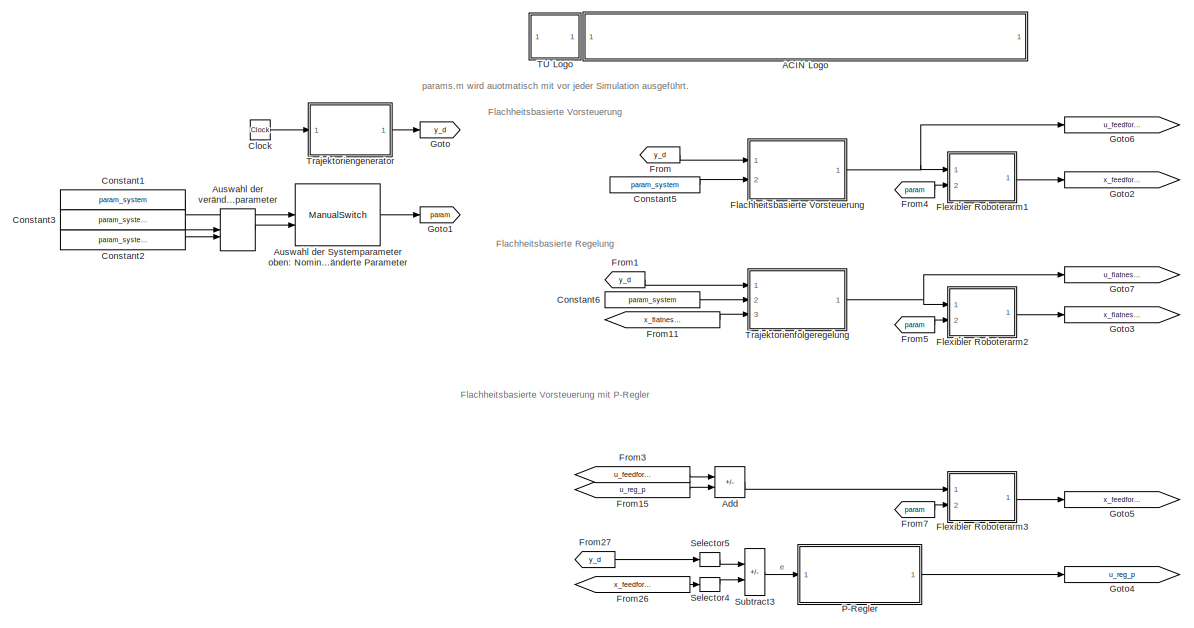
[diagram: root canvas - part 1/2, left side, full height]
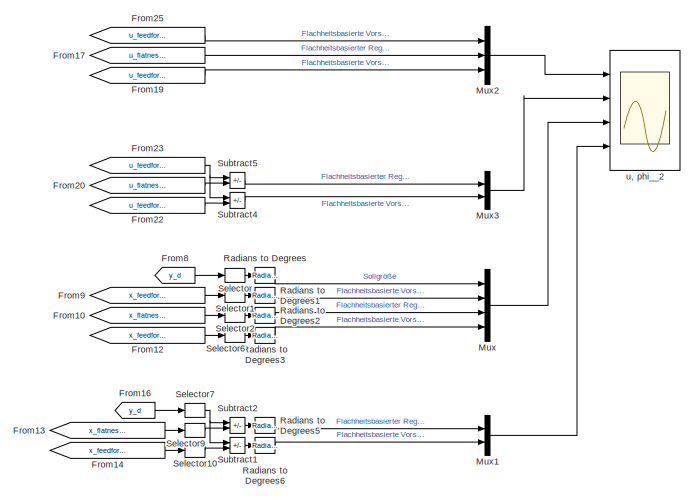
[diagram: root canvas - part 2/2, right side, full height]
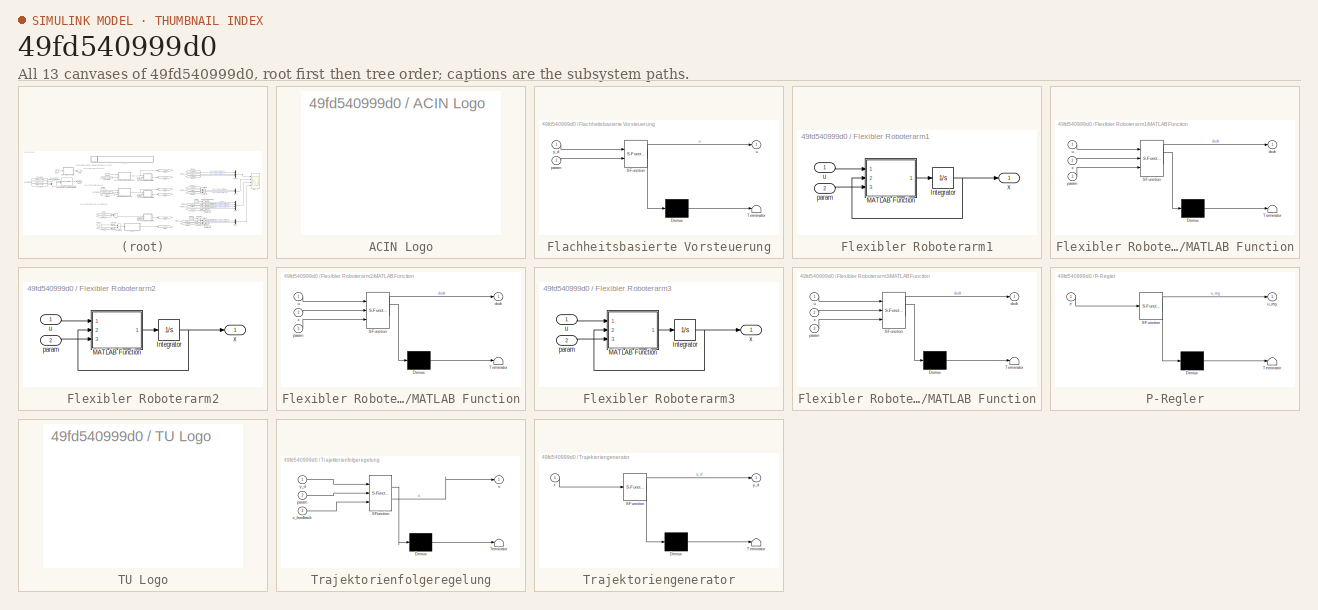
[diagram: thumbnail index - all 13 canvases of the model, root first then tree order]
MODEL slx_49fd540999d0
KIND model
CONFIG AbsTol = auto
CONFIG EnableMultiTasking = off
CONFIG FixedStep = auto
CONFIG InitFcn = params;
CONFIG MaxStep = auto
CONFIG MinStep = auto
CONFIG RelTol = 1e-3
CONFIG SampleTimeConstraint = Unconstrained
CONFIG SolverName = ode45
CONFIG StartTime = 0.0
CONFIG StopTime = 101
BLOCK [SubSystem] ACIN Logo
  Ports = []
  RequestExecContextInheritance = off
  UserDataPersistent = on
BLOCK [Sum] Add
  IconShape = rectangular
  Inputs = +-
  Ports = [2, 1]
BLOCK [ManualSwitch] Auswahl der Systemparameter oben: Nominelle Parameter unten: Veränderte Parameter
BLOCK [ManualSwitch] Auswahl der veränderten Systemparameter
BLOCK [Clock] Clock
BLOCK [Constant] Constant1
  Value = param_system
BLOCK [Constant] Constant2
  Value = param_system_altered2
BLOCK [Constant] Constant3
  Value = param_system_altered1
BLOCK [Constant] Constant5
  Value = param_system
BLOCK [Constant] Constant6
  Value = param_system
BLOCK [SubSystem] Flachheitsbasierte Vorsteuerung
  ErrorFcn = Stateflow.Translate.translate
  PermitHierarchicalResolution = ExplicitOnly
  Ports = [2, 1]
  RequestExecContextInheritance = off
  SFBlockType = MATLAB Function
  TreatAsAtomicUnit = on
BLOCK [Demux] Flachheitsbasierte Vorsteuerung/ Demux 
  Outputs = 1
  Ports = [1, 1]
BLOCK [S-Function] Flachheitsbasierte Vorsteuerung/ SFunction 
  EnableBusSupport = on
  FunctionName = sf_sfun
  PortCounts = [2 2]
  Ports = [2, 2]
  SFcnIsStateOwnerBlock = off
  SFunctionDeploymentMode = off
  Tag = Stateflow S-Function 2
BLOCK [Terminator] Flachheitsbasierte Vorsteuerung/ Terminator 
BLOCK [Inport] Flachheitsbasierte Vorsteuerung/param
  Port = 2
BLOCK [Outport] Flachheitsbasierte Vorsteuerung/u
BLOCK [Inport] Flachheitsbasierte Vorsteuerung/y_d
BLOCK [SubSystem] Flexibler Roboterarm1
  Ports = [2, 1]
  RequestExecContextInheritance = off
BLOCK [Integrator] Flexibler Roboterarm1/Integrator
  InitialCondition = x__0
  Ports = [1, 1]
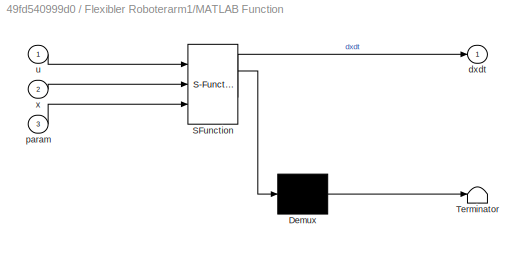
BLOCK [SubSystem] Flexibler Roboterarm1/MATLAB Function
  ErrorFcn = Stateflow.Translate.translate
  PermitHierarchicalResolution = ExplicitOnly
  Ports = [3, 1]
  RequestExecContextInheritance = off
  SFBlockType = MATLAB Function
  TreatAsAtomicUnit = on
BLOCK [Demux] Flexibler Roboterarm1/MATLAB Function/ Demux 
  Outputs = 1
  Ports = [1, 1]
BLOCK [S-Function] Flexibler Roboterarm1/MATLAB Function/ SFunction 
  EnableBusSupport = on
  FunctionName = sf_sfun
  PortCounts = [3 2]
  Ports = [3, 2]
  SFcnIsStateOwnerBlock = off
  SFunctionDeploymentMode = off
  Tag = Stateflow S-Function 10
BLOCK [Terminator] Flexibler Roboterarm1/MATLAB Function/ Terminator 
BLOCK [Outport] Flexibler Roboterarm1/MATLAB Function/dxdt
  VectorParamsAs1DForOutWhenUnconnected = off
BLOCK [Inport] Flexibler Roboterarm1/MATLAB Function/param
  Port = 3
BLOCK [Inport] Flexibler Roboterarm1/MATLAB Function/u
BLOCK [Inport] Flexibler Roboterarm1/MATLAB Function/x
  Port = 2
BLOCK [Inport] Flexibler Roboterarm1/param
  Port = 2
BLOCK [Inport] Flexibler Roboterarm1/u
BLOCK [Outport] Flexibler Roboterarm1/x
  VectorParamsAs1DForOutWhenUnconnected = off
BLOCK [SubSystem] Flexibler Roboterarm2
  Ports = [2, 1]
  RequestExecContextInheritance = off
BLOCK [Integrator] Flexibler Roboterarm2/Integrator
  InitialCondition = x__0
  Ports = [1, 1]
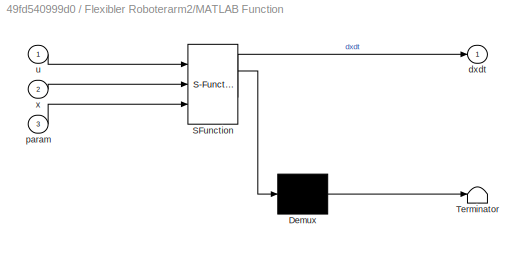
BLOCK [SubSystem] Flexibler Roboterarm2/MATLAB Function
  ErrorFcn = Stateflow.Translate.translate
  PermitHierarchicalResolution = ExplicitOnly
  Ports = [3, 1]
  RequestExecContextInheritance = off
  SFBlockType = MATLAB Function
  TreatAsAtomicUnit = on
BLOCK [Demux] Flexibler Roboterarm2/MATLAB Function/ Demux 
  Outputs = 1
  Ports = [1, 1]
BLOCK [S-Function] Flexibler Roboterarm2/MATLAB Function/ SFunction 
  EnableBusSupport = on
  FunctionName = sf_sfun
  PortCounts = [3 2]
  Ports = [3, 2]
  SFcnIsStateOwnerBlock = off
  SFunctionDeploymentMode = off
  Tag = Stateflow S-Function 6
BLOCK [Terminator] Flexibler Roboterarm2/MATLAB Function/ Terminator 
BLOCK [Outport] Flexibler Roboterarm2/MATLAB Function/dxdt
  VectorParamsAs1DForOutWhenUnconnected = off
BLOCK [Inport] Flexibler Roboterarm2/MATLAB Function/param
  Port = 3
BLOCK [Inport] Flexibler Roboterarm2/MATLAB Function/u
BLOCK [Inport] Flexibler Roboterarm2/MATLAB Function/x
  Port = 2
BLOCK [Inport] Flexibler Roboterarm2/param
  Port = 2
BLOCK [Inport] Flexibler Roboterarm2/u
BLOCK [Outport] Flexibler Roboterarm2/x
  VectorParamsAs1DForOutWhenUnconnected = off
BLOCK [SubSystem] Flexibler Roboterarm3
  Ports = [2, 1]
  RequestExecContextInheritance = off
BLOCK [Integrator] Flexibler Roboterarm3/Integrator
  InitialCondition = x__0
  Ports = [1, 1]
BLOCK [SubSystem] Flexibler Roboterarm3/MATLAB Function
  ErrorFcn = Stateflow.Translate.translate
  PermitHierarchicalResolution = ExplicitOnly
  Ports = [3, 1]
  RequestExecContextInheritance = off
  SFBlockType = MATLAB Function
  TreatAsAtomicUnit = on
BLOCK [Demux] Flexibler Roboterarm3/MATLAB Function/ Demux 
  Outputs = 1
  Ports = [1, 1]
BLOCK [S-Function] Flexibler Roboterarm3/MATLAB Function/ SFunction 
  EnableBusSupport = on
  FunctionName = sf_sfun
  PortCounts = [3 2]
  Ports = [3, 2]
  SFcnIsStateOwnerBlock = off
  SFunctionDeploymentMode = off
  Tag = Stateflow S-Function 8
BLOCK [Terminator] Flexibler Roboterarm3/MATLAB Function/ Terminator 
BLOCK [Outport] Flexibler Roboterarm3/MATLAB Function/dxdt
  VectorParamsAs1DForOutWhenUnconnected = off
BLOCK [Inport] Flexibler Roboterarm3/MATLAB Function/param
  Port = 3
BLOCK [Inport] Flexibler Roboterarm3/MATLAB Function/u
BLOCK [Inport] Flexibler Roboterarm3/MATLAB Function/x
  Port = 2
BLOCK [Inport] Flexibler Roboterarm3/param
  Port = 2
BLOCK [Inport] Flexibler Roboterarm3/u
BLOCK [Outport] Flexibler Roboterarm3/x
  VectorParamsAs1DForOutWhenUnconnected = off
BLOCK [From] From
  GotoTag = y_d
  TagVisibility = global
BLOCK [From] From1
  GotoTag = y_d
  TagVisibility = global
BLOCK [From] From10
  GotoTag = x_flatness_feedback
  TagVisibility = global
BLOCK [From] From11
  GotoTag = x_flatness_feedback
  TagVisibility = global
BLOCK [From] From12
  GotoTag = x_feedforward_p
  TagVisibility = global
BLOCK [From] From13
  GotoTag = x_flatness_feedback
  TagVisibility = global
BLOCK [From] From14
  GotoTag = x_feedforward_p
  TagVisibility = global
BLOCK [From] From15
  GotoTag = u_reg_p
BLOCK [From] From16
  GotoTag = y_d
  TagVisibility = global
BLOCK [From] From17
  GotoTag = u_flatness_feedback
  TagVisibility = global
BLOCK [From] From19
  GotoTag = u_feedforward_p
BLOCK [From] From20
  GotoTag = u_flatness_feedback
  TagVisibility = global
BLOCK [From] From22
  GotoTag = u_feedforward_p
BLOCK [From] From23
  GotoTag = u_feedforward_only
  TagVisibility = global
BLOCK [From] From25
  GotoTag = u_feedforward_only
  TagVisibility = global
BLOCK [From] From26
  GotoTag = x_feedforward_p
  TagVisibility = global
BLOCK [From] From27
  GotoTag = y_d
  TagVisibility = global
BLOCK [From] From3
  GotoTag = u_feedforward_only
  TagVisibility = global
BLOCK [From] From4
  GotoTag = param
  TagVisibility = global
BLOCK [From] From5
  GotoTag = param
  TagVisibility = global
BLOCK [From] From7
  GotoTag = param
  TagVisibility = global
BLOCK [From] From8
  GotoTag = y_d
  TagVisibility = global
BLOCK [From] From9
  GotoTag = x_feedforward_only
  TagVisibility = global
BLOCK [Goto] Goto
  GotoTag = y_d
  TagVisibility = global
BLOCK [Goto] Goto1
  GotoTag = param
  TagVisibility = global
BLOCK [Goto] Goto2
  GotoTag = x_feedforward_only
  TagVisibility = global
BLOCK [Goto] Goto3
  GotoTag = x_flatness_feedback
  TagVisibility = global
BLOCK [Goto] Goto4
  GotoTag = u_reg_p
BLOCK [Goto] Goto5
  GotoTag = x_feedforward_p
  TagVisibility = global
BLOCK [Goto] Goto6
  GotoTag = u_feedforward_only
  TagVisibility = global
BLOCK [Goto] Goto7
  GotoTag = u_flatness_feedback
  TagVisibility = global
BLOCK [Mux] Mux
  DisplayOption = bar
  Ports = [4, 1]
BLOCK [Mux] Mux1
  DisplayOption = bar
  Inputs = 2
  Ports = [2, 1]
BLOCK [Mux] Mux2
  DisplayOption = bar
  Inputs = 3
  Ports = [3, 1]
BLOCK [Mux] Mux3
  DisplayOption = bar
  Inputs = 2
  Ports = [2, 1]
BLOCK [SubSystem] P-Regler
  ErrorFcn = Stateflow.Translate.translate
  PermitHierarchicalResolution = ExplicitOnly
  Ports = [1, 1]
  RequestExecContextInheritance = off
  SFBlockType = MATLAB Function
  TreatAsAtomicUnit = on
BLOCK [Demux] P-Regler/ Demux 
  Outputs = 1
  Ports = [1, 1]
BLOCK [S-Function] P-Regler/ SFunction 
  EnableBusSupport = on
  FunctionName = sf_sfun
  Parameters = parReg
  PortCounts = [1 2]
  Ports = [1, 2]
  SFcnIsStateOwnerBlock = off
  SFunctionDeploymentMode = off
  Tag = Stateflow S-Function 4
BLOCK [Terminator] P-Regler/ Terminator 
BLOCK [Inport] P-Regler/e 
BLOCK [Outport] P-Regler/u_reg
BLOCK [Reference] Radians to Degrees  REF=simulink_extras/Transformations/Radians
to Degrees
  Ports = [1, 1]
  SourceBlock = simulink_extras/Transformations/Radians\nto Degrees
  SourceProductBaseCode = SL
  SourceType = RadiansToDegrees
BLOCK [Reference] Radians to Degrees1  REF=simulink_extras/Transformations/Radians
to Degrees
  Ports = [1, 1]
  SourceBlock = simulink_extras/Transformations/Radians\nto Degrees
  SourceProductBaseCode = SL
  SourceType = RadiansToDegrees
BLOCK [Reference] Radians to Degrees2  REF=simulink_extras/Transformations/Radians
to Degrees
  Ports = [1, 1]
  SourceBlock = simulink_extras/Transformations/Radians\nto Degrees
  SourceProductBaseCode = SL
  SourceType = RadiansToDegrees
BLOCK [Reference] Radians to Degrees3  REF=simulink_extras/Transformations/Radians
to Degrees
  Ports = [1, 1]
  SourceBlock = simulink_extras/Transformations/Radians\nto Degrees
  SourceProductBaseCode = SL
  SourceType = RadiansToDegrees
BLOCK [Reference] Radians to Degrees5  REF=simulink_extras/Transformations/Radians
to Degrees
  Ports = [1, 1]
  SourceBlock = simulink_extras/Transformations/Radians\nto Degrees
  SourceProductBaseCode = SL
  SourceType = RadiansToDegrees
BLOCK [Reference] Radians to Degrees6  REF=simulink_extras/Transformations/Radians
to Degrees
  Ports = [1, 1]
  SourceBlock = simulink_extras/Transformations/Radians\nto Degrees
  SourceProductBaseCode = SL
  SourceType = RadiansToDegrees
BLOCK [Selector] Selector
  IndexOptions = Index vector (dialog)
  Indices = [1]
  InputPortWidth = 5
  OutputSizes = 1
  Ports = [1, 1]
BLOCK [Selector] Selector1
  IndexOptions = Index vector (dialog)
  Indices = 2
  InputPortWidth = 4
  OutputSizes = 1
  Ports = [1, 1]
BLOCK [Selector] Selector10
  IndexOptions = Index vector (dialog)
  Indices = 2
  InputPortWidth = 4
  OutputSizes = 1
  Ports = [1, 1]
BLOCK [Selector] Selector2
  IndexOptions = Index vector (dialog)
  Indices = 2
  InputPortWidth = 4
  OutputSizes = 1
  Ports = [1, 1]
BLOCK [Selector] Selector4
  IndexOptions = Index vector (dialog)
  Indices = 2
  InputPortWidth = 4
  OutputSizes = 1
  Ports = [1, 1]
BLOCK [Selector] Selector5
  IndexOptions = Index vector (dialog)
  Indices = [1]
  InputPortWidth = 5
  OutputSizes = 1
  Ports = [1, 1]
BLOCK [Selector] Selector6
  IndexOptions = Index vector (dialog)
  Indices = 2
  InputPortWidth = 4
  OutputSizes = 1
  Ports = [1, 1]
BLOCK [Selector] Selector7
  IndexOptions = Index vector (dialog)
  Indices = [1]
  InputPortWidth = 5
  OutputSizes = 1
  Ports = [1, 1]
BLOCK [Selector] Selector9
  IndexOptions = Index vector (dialog)
  Indices = 2
  InputPortWidth = 4
  OutputSizes = 1
  Ports = [1, 1]
BLOCK [Sum] Subtract1
  IconShape = rectangular
  Inputs = -+
  Ports = [2, 1]
BLOCK [Sum] Subtract2
  IconShape = rectangular
  Inputs = -+
  Ports = [2, 1]
BLOCK [Sum] Subtract3
  IconShape = rectangular
  Inputs = -+
  Ports = [2, 1]
BLOCK [Sum] Subtract4
  IconShape = rectangular
  Inputs = -+
  Ports = [2, 1]
BLOCK [Sum] Subtract5
  IconShape = rectangular
  Inputs = -+
  Ports = [2, 1]
BLOCK [SubSystem] TU Logo
  Ports = []
  RequestExecContextInheritance = off
  UserDataPersistent = on
BLOCK [SubSystem] Trajektorienfolgeregelung
  ErrorFcn = Stateflow.Translate.translate
  PermitHierarchicalResolution = ExplicitOnly
  Ports = [3, 1]
  RequestExecContextInheritance = off
  SFBlockType = MATLAB Function
  TreatAsAtomicUnit = on
BLOCK [Demux] Trajektorienfolgeregelung/ Demux 
  Outputs = 1
  Ports = [1, 1]
BLOCK [S-Function] Trajektorienfolgeregelung/ SFunction 
  EnableBusSupport = on
  FunctionName = sf_sfun
  PortCounts = [3 2]
  Ports = [3, 2]
  SFcnIsStateOwnerBlock = off
  SFunctionDeploymentMode = off
  Tag = Stateflow S-Function 1
BLOCK [Terminator] Trajektorienfolgeregelung/ Terminator 
BLOCK [Inport] Trajektorienfolgeregelung/param
  Port = 2
BLOCK [Outport] Trajektorienfolgeregelung/u
BLOCK [Inport] Trajektorienfolgeregelung/x_feedback
  Port = 3
BLOCK [Inport] Trajektorienfolgeregelung/y_d
BLOCK [SubSystem] Trajektoriengenerator
  ErrorFcn = Stateflow.Translate.translate
  PermitHierarchicalResolution = ExplicitOnly
  Ports = [1, 1]
  RequestExecContextInheritance = off
  SFBlockType = MATLAB Function
  TreatAsAtomicUnit = on
BLOCK [Demux] Trajektoriengenerator/ Demux 
  Outputs = 1
  Ports = [1, 1]
BLOCK [S-Function] Trajektoriengenerator/ SFunction 
  EnableBusSupport = on
  FunctionName = sf_sfun
  Parameters = param_trajectory
  PortCounts = [1 2]
  Ports = [1, 2]
  SFcnIsStateOwnerBlock = off
  SFunctionDeploymentMode = off
  Tag = Stateflow S-Function 5
BLOCK [Terminator] Trajektoriengenerator/ Terminator 
BLOCK [Inport] Trajektoriengenerator/t
BLOCK [Outport] Trajektoriengenerator/y_d
  VectorParamsAs1DForOutWhenUnconnected = off
BLOCK [Scope] u, phi__2
  Floating = off
  NumInputPorts = 4
  Ports = [4]
  ScopeSpecificationString = Simulink.scopes.TimeScopeBlockCfg('CurrentConfiguration', extmgr.ConfigurationSet(extmgr.Configuration('Core','General UI',true),extmgr.Configuration('Core','Source UI',true),extmgr.Configuration('Sources','WiredSimulink',true,'DataLoggingVariableName','ScopeData2'),extmgr.Configuration('Visuals','Time Domain',true,'SerializedDisplays',{struct('MinYLimReal','-0.74196','MaxYLimReal','6.12132','YLab...<+5484ch>
ANNOTATION (root): params.m wird auotmatisch mit vor jeder Simulation ausgeführt.
ANNOTATION (root): Flachheitsbasierte Regelung
ANNOTATION (root): Flachheitsbasierte Vorsteuerung mit P-Regler
ANNOTATION (root): Flachheitsbasierte Vorsteuerung
LINE Add:1 -> Flexibler Roboterarm3:1
LINE Auswahl der Systemparameter oben: Nominelle Parameter unten: Veränderte Parameter:1 -> Goto1:1
LINE Auswahl der veränderten Systemparameter:1 -> Auswahl der Systemparameter oben: Nominelle Parameter unten: Veränderte Parameter:2
LINE Clock:1 -> Trajektoriengenerator:1
LINE Constant1:1 -> Auswahl der Systemparameter oben: Nominelle Parameter unten: Veränderte Parameter:1
LINE Constant2:1 -> Auswahl der veränderten Systemparameter:2
LINE Constant3:1 -> Auswahl der veränderten Systemparameter:1
LINE Constant5:1 -> Flachheitsbasierte Vorsteuerung:2
LINE Constant6:1 -> Trajektorienfolgeregelung:2
NET Flachheitsbasierte Vorsteuerung:1 -> Flexibler Roboterarm1:1, Goto6:1
NET Flexibler Roboterarm1/Integrator:1 -> Flexibler Roboterarm1/MATLAB Function:2, Flexibler Roboterarm1/x:1
LINE Flexibler Roboterarm1/MATLAB Function:1 -> Flexibler Roboterarm1/Integrator:1
LINE Flexibler Roboterarm1/param:1 -> Flexibler Roboterarm1/MATLAB Function:3
LINE Flexibler Roboterarm1/u:1 -> Flexibler Roboterarm1/MATLAB Function:1
LINE Flexibler Roboterarm1:1 -> Goto2:1
NET Flexibler Roboterarm2/Integrator:1 -> Flexibler Roboterarm2/MATLAB Function:2, Flexibler Roboterarm2/x:1
LINE Flexibler Roboterarm2/MATLAB Function:1 -> Flexibler Roboterarm2/Integrator:1
LINE Flexibler Roboterarm2/param:1 -> Flexibler Roboterarm2/MATLAB Function:3
LINE Flexibler Roboterarm2/u:1 -> Flexibler Roboterarm2/MATLAB Function:1
LINE Flexibler Roboterarm2:1 -> Goto3:1
NET Flexibler Roboterarm3/Integrator:1 -> Flexibler Roboterarm3/MATLAB Function:2, Flexibler Roboterarm3/x:1
LINE Flexibler Roboterarm3/MATLAB Function:1 -> Flexibler Roboterarm3/Integrator:1
LINE Flexibler Roboterarm3/param:1 -> Flexibler Roboterarm3/MATLAB Function:3
LINE Flexibler Roboterarm3/u:1 -> Flexibler Roboterarm3/MATLAB Function:1
LINE Flexibler Roboterarm3:1 -> Goto5:1
LINE From10:1 -> Selector2:1
LINE From11:1 -> Trajektorienfolgeregelung:3
LINE From12:1 -> Selector6:1
LINE From13:1 -> Selector9:1
LINE From14:1 -> Selector10:1
LINE From15:1 -> Add:2
LINE From16:1 -> Selector7:1
LINE From17:1 -> Mux2:2
LINE From19:1 -> Mux2:3
LINE From1:1 -> Trajektorienfolgeregelung:1
LINE From20:1 -> Subtract5:2
LINE From22:1 -> Subtract4:2
NET From23:1 -> Subtract4:1, Subtract5:1
LINE From25:1 -> Mux2:1
LINE From26:1 -> Selector4:1
LINE From27:1 -> Selector5:1
LINE From3:1 -> Add:1
LINE From4:1 -> Flexibler Roboterarm1:2
LINE From5:1 -> Flexibler Roboterarm2:2
LINE From7:1 -> Flexibler Roboterarm3:2
LINE From8:1 -> Selector:1
LINE From9:1 -> Selector1:1
LINE From:1 -> Flachheitsbasierte Vorsteuerung:1
LINE Mux1:1 -> u, phi__2:4
LINE Mux2:1 -> u, phi__2:1
LINE Mux3:1 -> u, phi__2:2
LINE Mux:1 -> u, phi__2:3
LINE P-Regler:1 -> Goto4:1
LINE Radians to Degrees1:1 -> Mux:2
LINE Radians to Degrees2:1 -> Mux:3
LINE Radians to Degrees3:1 -> Mux:4
LINE Radians to Degrees5:1 -> Mux1:1
LINE Radians to Degrees6:1 -> Mux1:2
LINE Radians to Degrees:1 -> Mux:1
LINE Selector10:1 -> Subtract1:2
LINE Selector1:1 -> Radians to Degrees1:1
LINE Selector2:1 -> Radians to Degrees2:1
LINE Selector4:1 -> Subtract3:2
LINE Selector5:1 -> Subtract3:1
LINE Selector6:1 -> Radians to Degrees3:1
NET Selector7:1 -> Subtract1:1, Subtract2:1
LINE Selector9:1 -> Subtract2:2
LINE Selector:1 -> Radians to Degrees:1
LINE Subtract1:1 -> Radians to Degrees6:1
LINE Subtract2:1 -> Radians to Degrees5:1
LINE Subtract3:1 -> P-Regler:1
LINE Subtract4:1 -> Mux3:2
LINE Subtract5:1 -> Mux3:1
NET Trajektorienfolgeregelung:1 -> Flexibler Roboterarm2:1, Goto7:1
LINE Trajektoriengenerator:1 -> Goto:1
note: NET lines group one-source signal fan-out (src -> all destinations, sorted); 1:1 wires keep LINE
CHART Trajektorienfolgeregelung states=1 transitions=1
  STATE_LABEL 'eML_blk_kernel()'
  STATE_LABEL 'SCRIPT:\nfunction u = fcn(y_d,param,x_feedback)\n%% Ableitungen Solltrajektorie\nphi__2_d = y_d(1);\nphi__2_dp = y_d(2);\nphi__2_dpp = y_d(3);\nphi__2_dppp = y_d(4);\nphi__2_dpppp = y_d(5);\n\n%% Parameter\nc=param(1);\nd__1=param(2);\nd__2=param(3);\nm=param(4);\ng=param(5);\nl=param(6);\nI__1=param(7);\nI__2=param(8);\n\n%% Zustände\nvarphi__1 = x_feedback(1);\nvarphi__2 = x_feedback(2);\nomega__1 = x_feedback(3);\nom...<+1080ch>'
CHART Flachheitsbasierte Vorsteuerung states=1 transitions=1
  STATE_LABEL 'eML_blk_kernel()'
  STATE_LABEL 'SCRIPT:\nfunction u = fcn(y_d,param)\n%% Ableitungen Solltrajektorie\nphi__2_d = y_d(1);\nphi__2_dp = y_d(2);\nphi__2_dpp = y_d(3);\nphi__2_dppp = y_d(4);\nphi__2_dpppp = y_d(5);\n\n%% Parameter\nc=param(1);\nd__1=param(2);\nd__2=param(3);\nm=param(4);\ng=param(5);\nl=param(6);\nI__1=param(7);\nI__2=param(8);\n\n%% Zustände\nvarphi__1 = (m * g * l * cos(phi__2_d) + phi__2_dpp * I__2 + c * phi__2_d + d__2 * phi__2_dp)...<+756ch>'
CHART P-Regler states=1 transitions=1
  STATE_LABEL 'eML_blk_kernel()'
  STATE_LABEL 'SCRIPT:\nfunction u_reg = fcn(e,parReg)\n\nk = parReg.k;\n\n\nu_reg = k*e;\n'
CHART Trajektoriengenerator states=1 transitions=1
  STATE_LABEL 'eML_blk_kernel()'
  STATE_LABEL 'SCRIPT:\nfunction y_d  = trajgen(t,param_trajectory)\n  T   = param_trajectory(1);\n  a0 = param_trajectory(2);\n  a1 = param_trajectory(3);\n\n  % Generierung der Trajektorie y1d für den flachen Ausgang y1\n  if (t<=0)\n      phi__2_d     = a0;\n      phi__2_dp    = 0;\n      phi__2_dpp   = 0;\n      phi__2_dppp  = 0;\n      phi__2_dpppp = 0;\n  elseif (t>T)\n      phi__2_d     = a1;\n      phi__2_dp    = 0;\n  ...<+1712ch>'
CHART Flexibler Roboterarm2/MATLAB Function states=1 transitions=1
  STATE_LABEL 'eML_blk_kernel()'
  STATE_LABEL 'SCRIPT:\nfunction dxdt = fcn(u,x,param)\n  c=param(1);\n  d__1=param(2);\n  d__2=param(3);\n  m=param(4);\n  g=param(5);\n  l=param(6);\n  I__1=param(7);\n  I__2=param(8);\n  \n  varphi__1=x(1);\n  varphi__2=x(2);\n  omega__1=x(3);\n  omega__2=x(4);\n  \n  dxdt=zeros(4,1);\n  dxdt(1) = omega__1;\n  dxdt(2) = omega__2;\n  dxdt(3) = -c/I__1*varphi__1 + c/I__1*varphi__2 - d__1/I__1*omega__1 + 1/I__1*u;\n  dxdt(4) =  c/I...<+87ch>'  <repeated x3 — deduplicated; at blocks: MATLAB Function>
CHART Flexibler Roboterarm3/MATLAB Function states=1 transitions=1
  STATE_LABEL 'eML_blk_kernel()'
CHART Flexibler Roboterarm1/MATLAB Function states=1 transitions=1
  STATE_LABEL 'eML_blk_kernel()'
CHART  states=0 transitions=0
CHART  states=0 transitions=0
CHART  states=0 transitions=0
CHART  states=0 transitions=0
CHART  states=0 transitions=0
CHART  states=0 transitions=0
CHART  states=0 transitions=0
